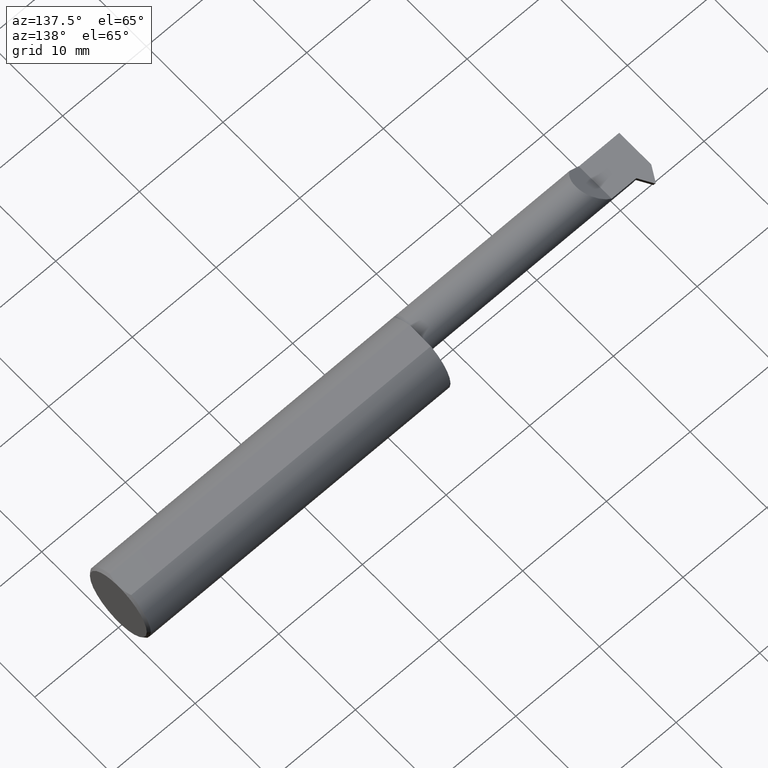
[diagram: clean part render]
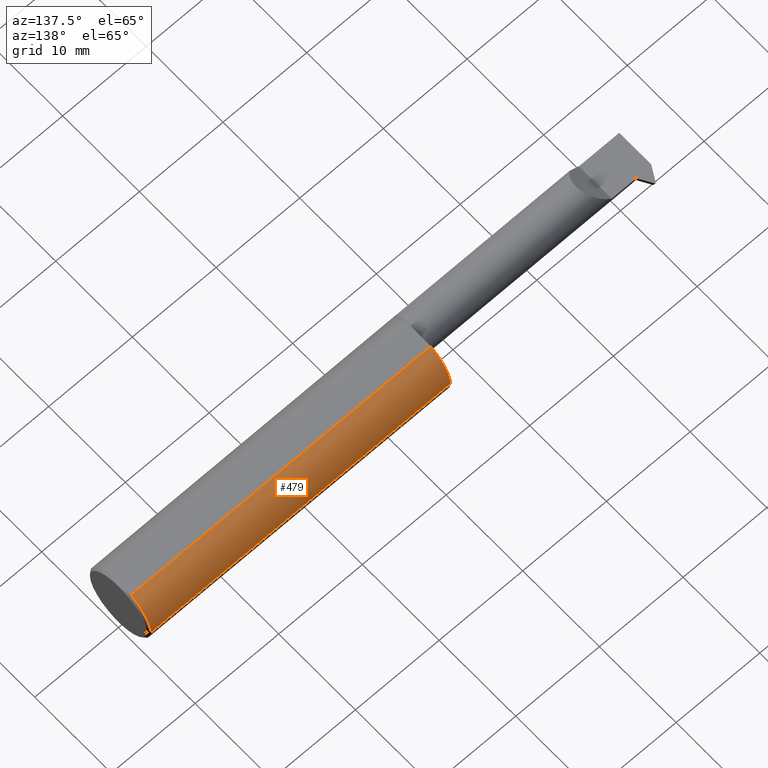
[diagram: same view with one face highlighted and labeled with its STEP entity id]
A machine part, auxiliary view. The second image highlights one B-rep face of the part: STEP entity #479.
In plain terms, the highlighted cylindrical surface (partial cylindrical patch) has radius 3.9649 mm, axis along (1, 0, -0).
Its self-contained STEP definition (entity closure, byte-faithful):
#23 = DIRECTION ( 'NONE',  ( 0.000000000000000000, 1.000000000000000000, 0.000000000000000000 ) ) ;
#67 = LINE ( 'NONE', #141, #210 ) ;
#93 = VECTOR ( 'NONE', #384, 39.37007874015748143 ) ;
#97 = CARTESIAN_POINT ( 'NONE',  ( -2.500000000000000000, -6.123233995736767268E-17, 0.000000000000000000 ) ) ;
#123 = CARTESIAN_POINT ( 'NONE',  ( -0.009999999999999073866, 2.437047130303233649E-16, 0.000000000000000000 ) ) ;
#136 = CIRCLE ( 'NONE', #601, 0.1561000000000000165 ) ;
#141 = CARTESIAN_POINT ( 'NONE',  ( -2.500000000000000000, 0.05497272050753895106, 0.1461000000000000076 ) ) ;
#153 = CYLINDRICAL_SURFACE ( 'NONE', #194, 0.1561000000000000165 ) ;
#194 = AXIS2_PLACEMENT_3D ( 'NONE', #97, #580, #23 ) ;
#210 = VECTOR ( 'NONE', #417, 39.37007874015748143 ) ;
#229 = VERTEX_POINT ( 'NONE', #281 ) ;
#255 = AXIS2_PLACEMENT_3D ( 'NONE', #342, #473, #276 ) ;
#276 = DIRECTION ( 'NONE',  ( 0.000000000000000000, -1.000000000000000000, -8.881784197001252323E-16 ) ) ;
#281 = CARTESIAN_POINT ( 'NONE',  ( -0.009999999999999092948, 0.1561000000000002386, 0.000000000000000000 ) ) ;
#291 = EDGE_CURVE ( 'NONE', #790, #584, #67, .T. ) ;
#314 = VERTEX_POINT ( 'NONE', #316 ) ;
#316 = CARTESIAN_POINT ( 'NONE',  ( -1.420000000000000151, 0.1561000000000000720, 0.000000000000000000 ) ) ;
#342 = CARTESIAN_POINT ( 'NONE',  ( -1.420000000000000151, 7.102951435054642734E-17, 0.000000000000000000 ) ) ;
#347 = CARTESIAN_POINT ( 'NONE',  ( -1.420000000000000151, 0.05497272050753924943, 0.1461000000000000354 ) ) ;
#358 = ORIENTED_EDGE ( 'NONE', *, *, #490, .F. ) ;
#384 = DIRECTION ( 'NONE',  ( 1.000000000000000000, 1.224646799147352961E-16, -0.000000000000000000 ) ) ;
#405 = DIRECTION ( 'NONE',  ( -1.000000000000000000, -1.224646799147319927E-16, 0.000000000000000000 ) ) ;
#417 = DIRECTION ( 'NONE',  ( -1.000000000000000000, -1.224646799147352961E-16, 0.000000000000000000 ) ) ;
#441 = FACE_OUTER_BOUND ( 'NONE', #450, .T. ) ;
#448 = LINE ( 'NONE', #566, #93 ) ;
#450 = EDGE_LOOP ( 'NONE', ( #358, #667, #716, #487 ) ) ;
#473 = DIRECTION ( 'NONE',  ( 1.000000000000000000, 1.301231752219315598E-17, 0.000000000000000000 ) ) ;
#479 = ADVANCED_FACE ( 'NONE', ( #441 ), #153, .T. ) ;
#487 = ORIENTED_EDGE ( 'NONE', *, *, #548, .T. ) ;
#490 = EDGE_CURVE ( 'NONE', #314, #229, #448, .T. ) ;
#524 = CIRCLE ( 'NONE', #255, 0.1561000000000000165 ) ;
#548 = EDGE_CURVE ( 'NONE', #790, #229, #136, .T. ) ;
#566 = CARTESIAN_POINT ( 'NONE',  ( -2.500000000000000000, 0.1560999999999999333, 0.000000000000000000 ) ) ;
#580 = DIRECTION ( 'NONE',  ( 1.000000000000000000, 1.224646799147352961E-16, -0.000000000000000000 ) ) ;
#584 = VERTEX_POINT ( 'NONE', #347 ) ;
#601 = AXIS2_PLACEMENT_3D ( 'NONE', #123, #405, #655 ) ;
#655 = DIRECTION ( 'NONE',  ( -1.230512889522860364E-16, 1.000000000000000000, 0.000000000000000000 ) ) ;
#667 = ORIENTED_EDGE ( 'NONE', *, *, #874, .T. ) ;
#670 = CARTESIAN_POINT ( 'NONE',  ( -0.009999999999999073866, 0.05497272050753925637, 0.1461000000000000076 ) ) ;
#716 = ORIENTED_EDGE ( 'NONE', *, *, #291, .F. ) ;
#790 = VERTEX_POINT ( 'NONE', #670 ) ;
#874 = EDGE_CURVE ( 'NONE', #314, #584, #524, .T. ) ;